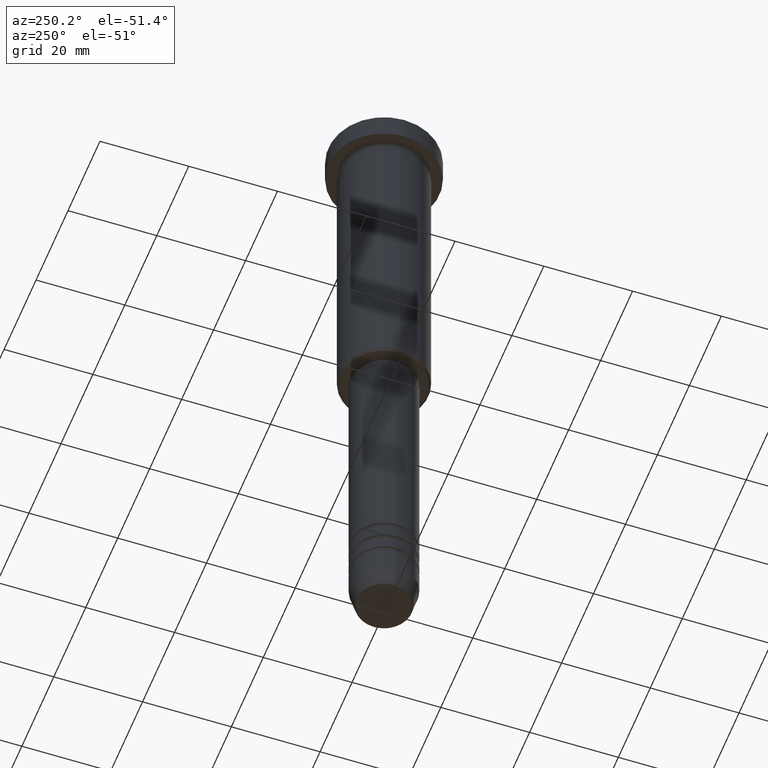
[diagram: clean part render]
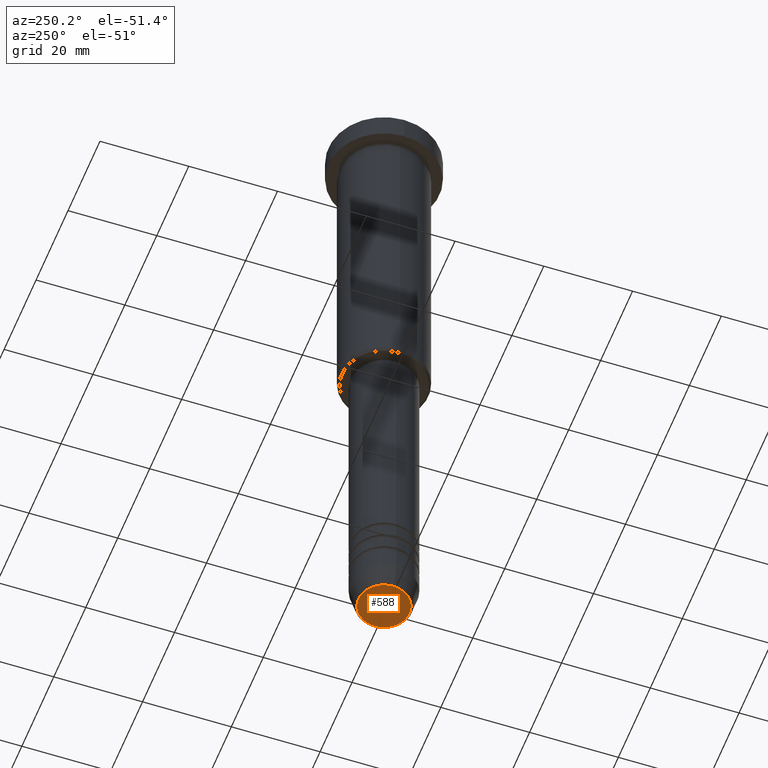
[diagram: same view with one face highlighted and labeled with its STEP entity id]
A machine part, auxiliary view. The second image highlights one B-rep face of the part: STEP entity #588.
In plain terms, the highlighted planar face has unit normal (0, -0, 1).
Its self-contained STEP definition (entity closure, byte-faithful):
#126 = AXIS2_PLACEMENT_3D ( 'NONE', #827, #349, #373 ) ;
#165 = CARTESIAN_POINT ( 'NONE',  ( 0.000000000000000000, 0.000000000000000000, -151.0000000000000284 ) ) ;
#185 = DIRECTION ( 'NONE',  ( 1.000000000000000000, 0.000000000000000000, 0.000000000000000000 ) ) ;
#190 = ORIENTED_EDGE ( 'NONE', *, *, #287, .T. ) ;
#223 = VERTEX_POINT ( 'NONE', #263 ) ;
#263 = CARTESIAN_POINT ( 'NONE',  ( -5.776590543854905668, 7.370012612361447573E-16, -151.0000000000000284 ) ) ;
#287 = EDGE_CURVE ( 'NONE', #223, #864, #644, .T. ) ;
#338 = DIRECTION ( 'NONE',  ( 0.000000000000000000, 0.000000000000000000, -1.000000000000000000 ) ) ;
#343 = AXIS2_PLACEMENT_3D ( 'NONE', #165, #338, #185 ) ;
#349 = DIRECTION ( 'NONE',  ( 0.000000000000000000, 0.000000000000000000, -1.000000000000000000 ) ) ;
#373 = DIRECTION ( 'NONE',  ( 1.000000000000000000, 0.000000000000000000, 0.000000000000000000 ) ) ;
#388 = EDGE_LOOP ( 'NONE', ( #1152, #190 ) ) ;
#437 = AXIS2_PLACEMENT_3D ( 'NONE', #1130, #1041, #883 ) ;
#588 = ADVANCED_FACE ( 'NONE', ( #861 ), #869, .F. ) ;
#644 = CIRCLE ( 'NONE', #126, 5.776590543854905668 ) ;
#736 = CARTESIAN_POINT ( 'NONE',  ( 5.776590543854905668, 0.000000000000000000, -151.0000000000000284 ) ) ;
#760 = EDGE_CURVE ( 'NONE', #864, #223, #992, .T. ) ;
#827 = CARTESIAN_POINT ( 'NONE',  ( 0.000000000000000000, 0.000000000000000000, -151.0000000000000284 ) ) ;
#861 = FACE_OUTER_BOUND ( 'NONE', #388, .T. ) ;
#864 = VERTEX_POINT ( 'NONE', #736 ) ;
#869 = PLANE ( 'NONE',  #437 ) ;
#883 = DIRECTION ( 'NONE',  ( 1.000000000000000000, 0.000000000000000000, 0.000000000000000000 ) ) ;
#992 = CIRCLE ( 'NONE', #343, 5.776590543854905668 ) ;
#1041 = DIRECTION ( 'NONE',  ( 0.000000000000000000, -0.000000000000000000, 1.000000000000000000 ) ) ;
#1130 = CARTESIAN_POINT ( 'NONE',  ( 0.000000000000000000, 0.000000000000000000, -151.0000000000000284 ) ) ;
#1152 = ORIENTED_EDGE ( 'NONE', *, *, #760, .T. ) ;